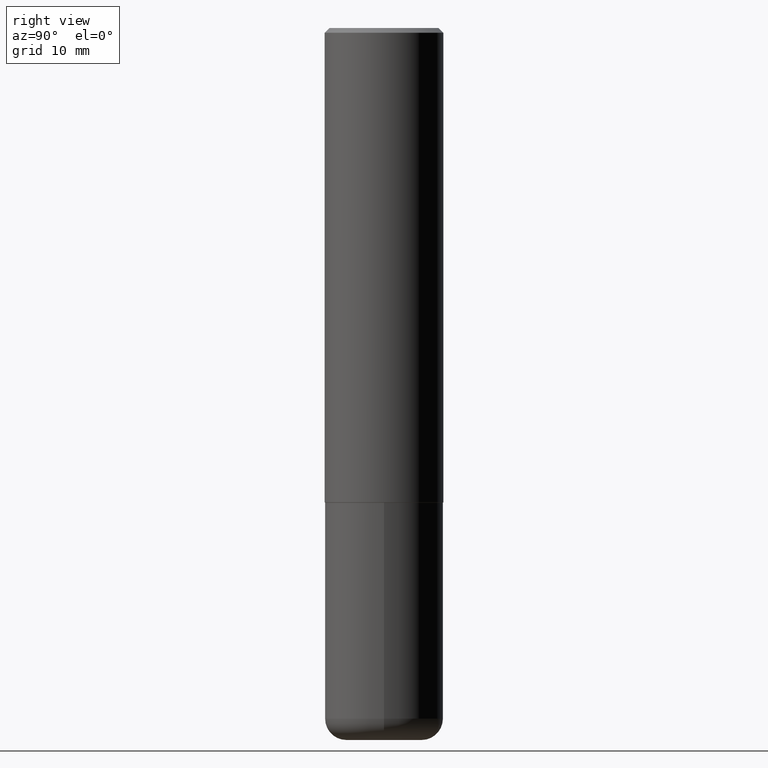
[diagram: clean part render]
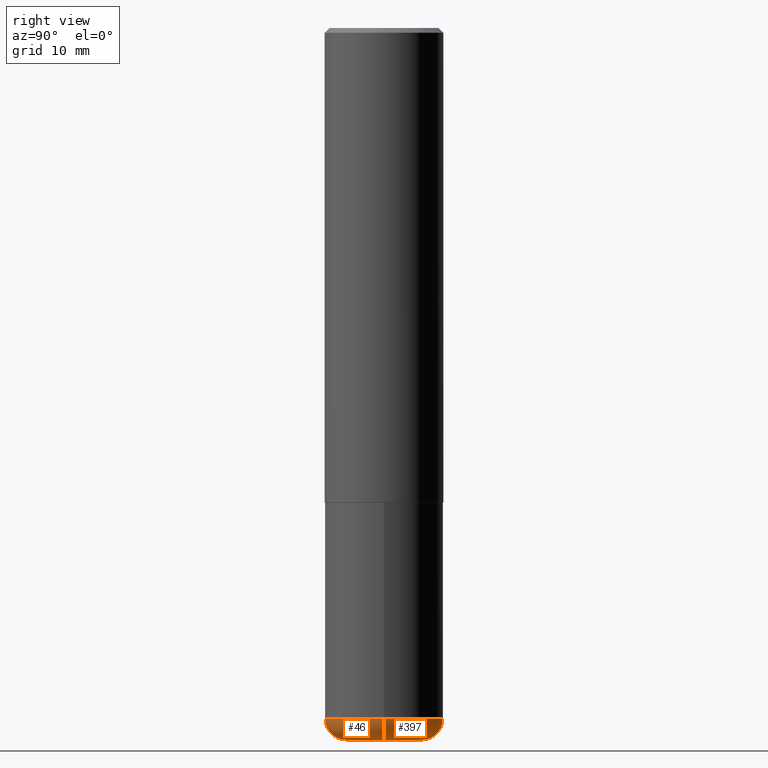
[diagram: same view with one multi-face feature highlighted, each face labeled with its STEP entity id]
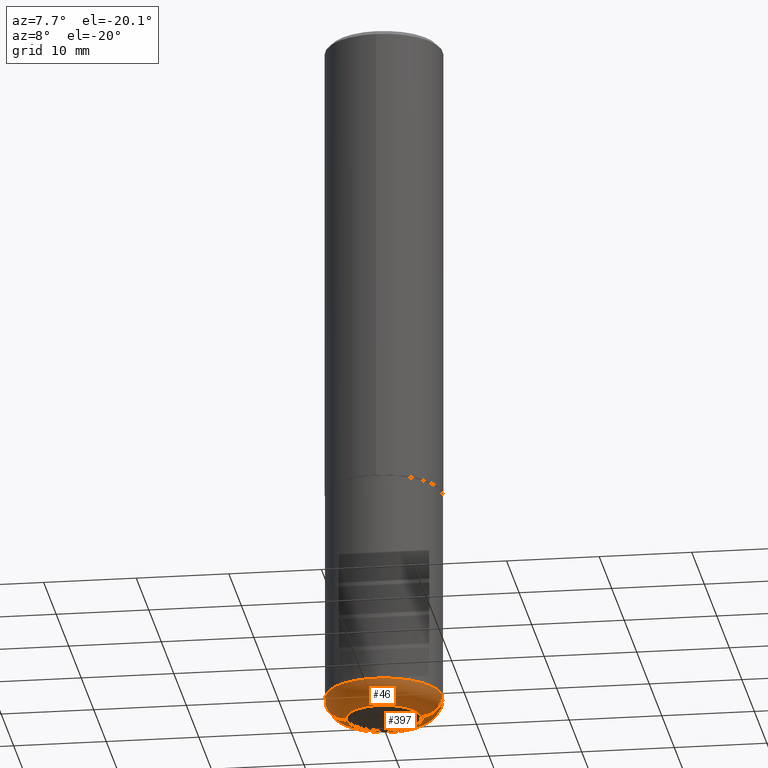
[diagram: same view with one multi-face feature highlighted, each face labeled with its STEP entity id]
A machine part, right view. The highlighted faces form ONE feature: a constant-radius fillet chain: 2 tangent blend faces with common blend radius 2.286 mm. The faces share edges in the B-rep.
A second angle (auxiliary view) of the same feature is appended — it is thin or edge-on in the first view.
Their STEP definitions:
[1] entity #397 (Torus):
#5 = VERTEX_POINT ( 'NONE', #296 ) ;
#6 = CARTESIAN_POINT ( 'NONE',  ( 7.336406418555409790E-29, -1.047444401652943635E-14, -3.000000000000000444 ) ) ;
#7 = EDGE_CURVE ( 'NONE', #244, #306, #113, .T. ) ;
#16 = CARTESIAN_POINT ( 'NONE',  ( 7.116314225998749245E-29, -1.016021069603355467E-14, -2.910000000000000586 ) ) ;
#26 = ORIENTED_EDGE ( 'NONE', *, *, #7, .T. ) ;
#31 = DIRECTION ( 'NONE',  ( -6.982962677686266711E-15, -1.000000000000000000, 3.491481338843145583E-15 ) ) ;
#48 = TOROIDAL_SURFACE ( 'NONE', #88, 0.1600000000000000033, 0.08999999999999994116 ) ;
#81 = ORIENTED_EDGE ( 'NONE', *, *, #237, .F. ) ;
#83 = ORIENTED_EDGE ( 'NONE', *, *, #179, .T. ) ;
#88 = AXIS2_PLACEMENT_3D ( 'NONE', #16, #394, #99 ) ;
#91 = CARTESIAN_POINT ( 'NONE',  ( -0.1600000000000000033, -9.023342318817394938E-15, -2.910000000000000586 ) ) ;
#99 = DIRECTION ( 'NONE',  ( 1.000000000000000000, -6.982962677686265133E-15, 4.883557194083112340E-29 ) ) ;
#113 = CIRCLE ( 'NONE', #253, 0.08999999999999992728 ) ;
#119 = ORIENTED_EDGE ( 'NONE', *, *, #141, .F. ) ;
#123 = CARTESIAN_POINT ( 'NONE',  ( 0.1600000000000000033, -1.127748472446335797E-14, -2.910000000000000586 ) ) ;
#125 = CARTESIAN_POINT ( 'NONE',  ( 0.1600000000000000033, -1.159171804495923808E-14, -3.000000000000000444 ) ) ;
#141 = EDGE_CURVE ( 'NONE', #181, #5, #186, .T. ) ;
#147 = DIRECTION ( 'NONE',  ( 1.000000000000000000, -6.982962677686269077E-15, 0.000000000000000000 ) ) ;
#149 = DIRECTION ( 'NONE',  ( 1.000000000000000000, -6.982962677686273810E-15, 0.000000000000000000 ) ) ;
#168 = CARTESIAN_POINT ( 'NONE',  ( -0.2500000000000000000, -8.383853856633304202E-15, -2.910000000000000586 ) ) ;
#179 = EDGE_CURVE ( 'NONE', #181, #244, #300, .T. ) ;
#181 = VERTEX_POINT ( 'NONE', #125 ) ;
#186 = CIRCLE ( 'NONE', #344, 0.08999999999999992728 ) ;
#189 = DIRECTION ( 'NONE',  ( -2.445468806185136597E-29, 3.491481338843145583E-15, 1.000000000000000000 ) ) ;
#190 = EDGE_LOOP ( 'NONE', ( #83, #26, #81, #119 ) ) ;
#208 = FACE_OUTER_BOUND ( 'NONE', #190, .T. ) ;
#228 = CIRCLE ( 'NONE', #286, 0.2500000000000000555 ) ;
#237 = EDGE_CURVE ( 'NONE', #5, #306, #228, .T. ) ;
#244 = VERTEX_POINT ( 'NONE', #256 ) ;
#253 = AXIS2_PLACEMENT_3D ( 'NONE', #91, #354, #318 ) ;
#256 = CARTESIAN_POINT ( 'NONE',  ( -0.1600000000000000033, -8.860714747973290413E-15, -3.000000000000000444 ) ) ;
#259 = DIRECTION ( 'NONE',  ( 1.000000000000000000, -6.982962677686259611E-15, 0.000000000000000000 ) ) ;
#271 = AXIS2_PLACEMENT_3D ( 'NONE', #6, #189, #259 ) ;
#286 = AXIS2_PLACEMENT_3D ( 'NONE', #416, #382, #147 ) ;
#296 = CARTESIAN_POINT ( 'NONE',  ( 0.2500000000000000000, -1.190595136545512292E-14, -2.910000000000000586 ) ) ;
#300 = CIRCLE ( 'NONE', #271, 0.1600000000000000033 ) ;
#306 = VERTEX_POINT ( 'NONE', #168 ) ;
#318 = DIRECTION ( 'NONE',  ( -1.000000000000000000, 7.105427357601006592E-15, 0.000000000000000000 ) ) ;
#344 = AXIS2_PLACEMENT_3D ( 'NONE', #123, #31, #149 ) ;
#354 = DIRECTION ( 'NONE',  ( 7.105427357601001859E-15, 1.000000000000000000, -3.491481338843145583E-15 ) ) ;
#382 = DIRECTION ( 'NONE',  ( -2.445468806185136597E-29, 3.491481338843145583E-15, 1.000000000000000000 ) ) ;
#394 = DIRECTION ( 'NONE',  ( -2.445468806185136597E-29, 3.491481338843145583E-15, 1.000000000000000000 ) ) ;
#397 = ADVANCED_FACE ( 'NONE', ( #208 ), #48, .T. ) ;
#416 = CARTESIAN_POINT ( 'NONE',  ( 7.116314225998749245E-29, -1.016021069603355467E-14, -2.910000000000000586 ) ) ;
[2] entity #46 (Torus):
#5 = VERTEX_POINT ( 'NONE', #296 ) ;
#7 = EDGE_CURVE ( 'NONE', #244, #306, #113, .T. ) ;
#8 = CARTESIAN_POINT ( 'NONE',  ( 7.116314225998749245E-29, -1.016021069603355467E-14, -2.910000000000000586 ) ) ;
#18 = TOROIDAL_SURFACE ( 'NONE', #380, 0.1600000000000000033, 0.08999999999999994116 ) ;
#31 = DIRECTION ( 'NONE',  ( -6.982962677686266711E-15, -1.000000000000000000, 3.491481338843145583E-15 ) ) ;
#46 = ADVANCED_FACE ( 'NONE', ( #287 ), #18, .T. ) ;
#76 = DIRECTION ( 'NONE',  ( -2.445468806185136597E-29, 3.491481338843145583E-15, 1.000000000000000000 ) ) ;
#91 = CARTESIAN_POINT ( 'NONE',  ( -0.1600000000000000033, -9.023342318817394938E-15, -2.910000000000000586 ) ) ;
#102 = CARTESIAN_POINT ( 'NONE',  ( 7.336406418555409790E-29, -1.047444401652943635E-14, -3.000000000000000444 ) ) ;
#108 = CIRCLE ( 'NONE', #348, 0.2500000000000000555 ) ;
#110 = ORIENTED_EDGE ( 'NONE', *, *, #7, .F. ) ;
#113 = CIRCLE ( 'NONE', #253, 0.08999999999999992728 ) ;
#123 = CARTESIAN_POINT ( 'NONE',  ( 0.1600000000000000033, -1.127748472446335797E-14, -2.910000000000000586 ) ) ;
#125 = CARTESIAN_POINT ( 'NONE',  ( 0.1600000000000000033, -1.159171804495923808E-14, -3.000000000000000444 ) ) ;
#141 = EDGE_CURVE ( 'NONE', #181, #5, #186, .T. ) ;
#149 = DIRECTION ( 'NONE',  ( 1.000000000000000000, -6.982962677686273810E-15, 0.000000000000000000 ) ) ;
#150 = ORIENTED_EDGE ( 'NONE', *, *, #141, .T. ) ;
#161 = AXIS2_PLACEMENT_3D ( 'NONE', #102, #76, #391 ) ;
#167 = DIRECTION ( 'NONE',  ( -2.445468806185136597E-29, 3.491481338843145583E-15, 1.000000000000000000 ) ) ;
#168 = CARTESIAN_POINT ( 'NONE',  ( -0.2500000000000000000, -8.383853856633304202E-15, -2.910000000000000586 ) ) ;
#181 = VERTEX_POINT ( 'NONE', #125 ) ;
#185 = DIRECTION ( 'NONE',  ( -2.445468806185136597E-29, 3.491481338843145583E-15, 1.000000000000000000 ) ) ;
#186 = CIRCLE ( 'NONE', #344, 0.08999999999999992728 ) ;
#211 = EDGE_CURVE ( 'NONE', #306, #5, #108, .T. ) ;
#238 = ORIENTED_EDGE ( 'NONE', *, *, #340, .T. ) ;
#244 = VERTEX_POINT ( 'NONE', #256 ) ;
#253 = AXIS2_PLACEMENT_3D ( 'NONE', #91, #354, #318 ) ;
#256 = CARTESIAN_POINT ( 'NONE',  ( -0.1600000000000000033, -8.860714747973290413E-15, -3.000000000000000444 ) ) ;
#287 = FACE_OUTER_BOUND ( 'NONE', #322, .T. ) ;
#296 = CARTESIAN_POINT ( 'NONE',  ( 0.2500000000000000000, -1.190595136545512292E-14, -2.910000000000000586 ) ) ;
#303 = ORIENTED_EDGE ( 'NONE', *, *, #211, .F. ) ;
#306 = VERTEX_POINT ( 'NONE', #168 ) ;
#318 = DIRECTION ( 'NONE',  ( -1.000000000000000000, 7.105427357601006592E-15, 0.000000000000000000 ) ) ;
#321 = DIRECTION ( 'NONE',  ( 1.000000000000000000, -6.982962677686269077E-15, 0.000000000000000000 ) ) ;
#322 = EDGE_LOOP ( 'NONE', ( #110, #238, #150, #303 ) ) ;
#340 = EDGE_CURVE ( 'NONE', #244, #181, #365, .T. ) ;
#344 = AXIS2_PLACEMENT_3D ( 'NONE', #123, #31, #149 ) ;
#348 = AXIS2_PLACEMENT_3D ( 'NONE', #417, #185, #321 ) ;
#354 = DIRECTION ( 'NONE',  ( 7.105427357601001859E-15, 1.000000000000000000, -3.491481338843145583E-15 ) ) ;
#365 = CIRCLE ( 'NONE', #161, 0.1600000000000000033 ) ;
#380 = AXIS2_PLACEMENT_3D ( 'NONE', #8, #167, #389 ) ;
#389 = DIRECTION ( 'NONE',  ( 1.000000000000000000, -6.982962677686265133E-15, 4.883557194083112340E-29 ) ) ;
#391 = DIRECTION ( 'NONE',  ( 1.000000000000000000, -6.982962677686259611E-15, 0.000000000000000000 ) ) ;
#417 = CARTESIAN_POINT ( 'NONE',  ( 7.116314225998749245E-29, -1.016021069603355467E-14, -2.910000000000000586 ) ) ;